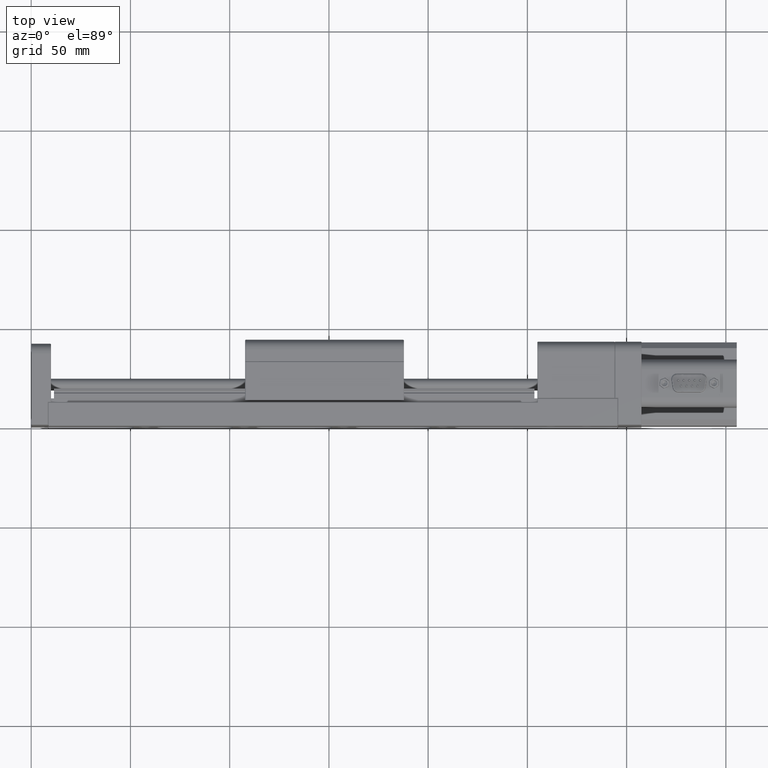
[diagram: clean part render]
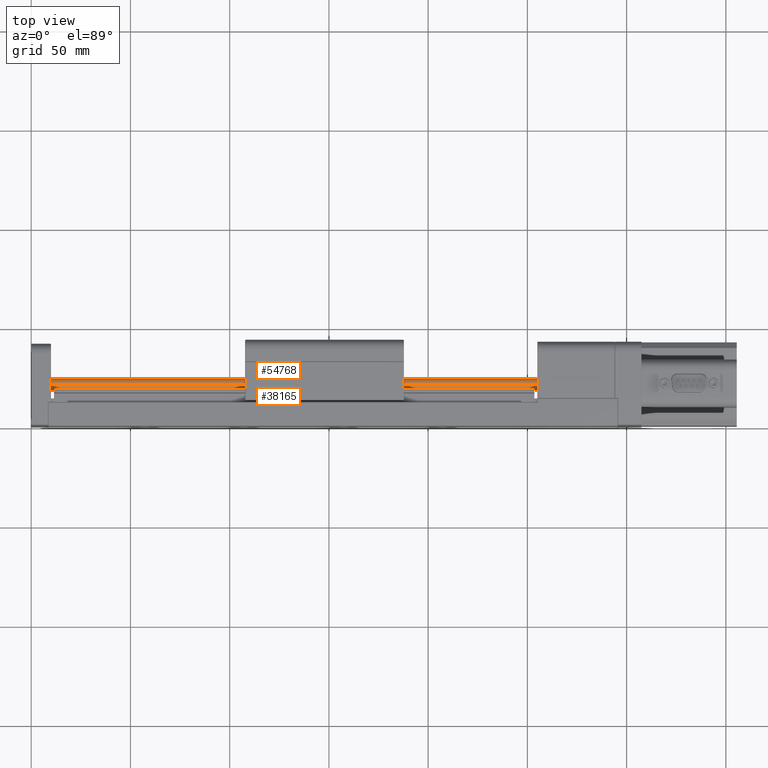
[diagram: same view with one multi-face feature highlighted, each face labeled with its STEP entity id]
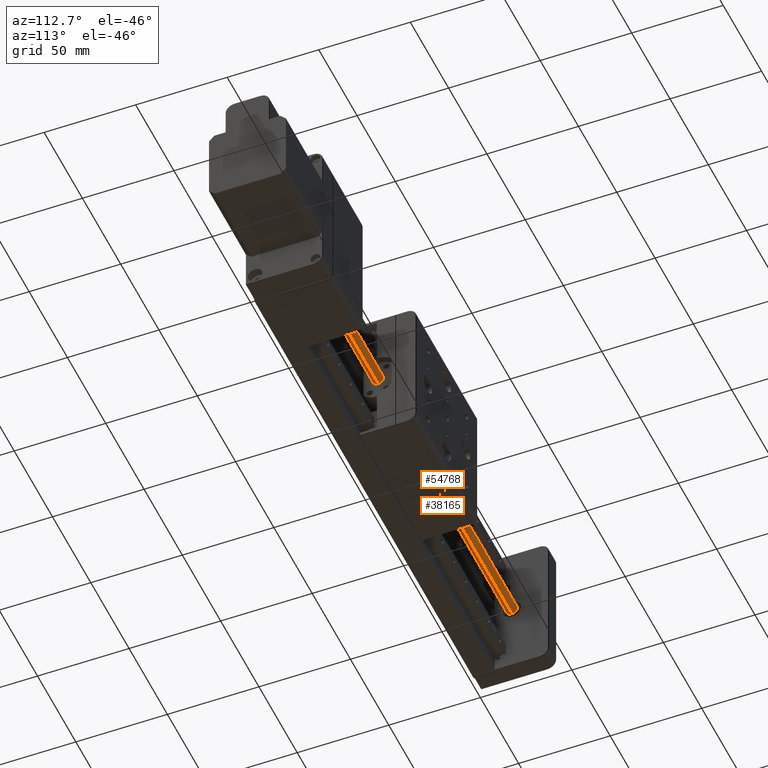
[diagram: same view with one multi-face feature highlighted, each face labeled with its STEP entity id]
A machine part, top view. The highlighted faces form ONE feature: a constant-radius fillet chain: 2 tangent blend faces with common blend radius 3 mm. The faces share edges in the B-rep.
A second angle (auxiliary view) of the same feature is appended — it is thin or edge-on in the first view.
Their STEP definitions:
[1] entity #54768 (Cylinder):
#1550 = DIRECTION ( 'NONE',  ( 1.000000000000000000, -1.223236845864777800E-017, 3.614965333616461100E-017 ) ) ;
#4746 = LINE ( 'NONE', #66017, #41784 ) ;
#8175 = CARTESIAN_POINT ( 'NONE',  ( 10.00000000000012100, 21.50000000000009200, -40.00000000000040500 ) ) ;
#8949 = CARTESIAN_POINT ( 'NONE',  ( 10.00000000000012100, 21.50000000000008900, -37.00000000000039800 ) ) ;
#9236 = AXIS2_PLACEMENT_3D ( 'NONE', #8175, #94373, #120803 ) ;
#9346 = CARTESIAN_POINT ( 'NONE',  ( 3.000000000000113700, 21.50000000000009200, -40.00000000000040500 ) ) ;
#10941 = VERTEX_POINT ( 'NONE', #39783 ) ;
#18051 = AXIS2_PLACEMENT_3D ( 'NONE', #79032, #87764, #60103 ) ;
#24421 = CARTESIAN_POINT ( 'NONE',  ( 257.0000000000001100, 21.50000000000008900, -43.00000000000039800 ) ) ;
#27014 = EDGE_CURVE ( 'NONE', #47985, #49126, #31457, .T. ) ;
#27197 = EDGE_CURVE ( 'NONE', #96451, #10941, #106427, .T. ) ;
#28381 = DIRECTION ( 'NONE',  ( 0.0000000000000000000, 0.0000000000000000000, -1.000000000000000000 ) ) ;
#28977 = EDGE_CURVE ( 'NONE', #49126, #96451, #4746, .T. ) ;
#31457 = CIRCLE ( 'NONE', #9236, 3.000000000000002700 ) ;
#37930 = DIRECTION ( 'NONE',  ( 1.000000000000000000, -1.223236845864777800E-017, 3.614965333616461100E-017 ) ) ;
#39783 = CARTESIAN_POINT ( 'NONE',  ( 257.0000000000001100, 21.50000000000008900, -37.00000000000039100 ) ) ;
#41784 = VECTOR ( 'NONE', #1550, 1000.000000000000000 ) ;
#47665 = EDGE_CURVE ( 'NONE', #47985, #10941, #118284, .T. ) ;
#47985 = VERTEX_POINT ( 'NONE', #8949 ) ;
#48417 = AXIS2_PLACEMENT_3D ( 'NONE', #9346, #37930, #28381 ) ;
#49126 = VERTEX_POINT ( 'NONE', #66444 ) ;
#54768 = ADVANCED_FACE ( 'NONE', ( #78916 ), #121815, .T. ) ;
#58996 = DIRECTION ( 'NONE',  ( 1.000000000000000000, -1.223236845864777800E-017, 3.614965333616461100E-017 ) ) ;
#60103 = DIRECTION ( 'NONE',  ( 0.0000000000000000000, 0.0000000000000000000, -1.000000000000000000 ) ) ;
#65570 = ORIENTED_EDGE ( 'NONE', *, *, #27014, .F. ) ;
#66017 = CARTESIAN_POINT ( 'NONE',  ( 3.000000000000113700, 21.50000000000009200, -43.00000000000040500 ) ) ;
#66444 = CARTESIAN_POINT ( 'NONE',  ( 10.00000000000012100, 21.50000000000008900, -43.00000000000040500 ) ) ;
#68076 = VECTOR ( 'NONE', #58996, 1000.000000000000000 ) ;
#73426 = ORIENTED_EDGE ( 'NONE', *, *, #28977, .F. ) ;
#78916 = FACE_OUTER_BOUND ( 'NONE', #100235, .T. ) ;
#79032 = CARTESIAN_POINT ( 'NONE',  ( 257.0000000000001100, 21.50000000000008900, -40.00000000000039800 ) ) ;
#87764 = DIRECTION ( 'NONE',  ( 1.000000000000000000, -1.223236845864777800E-017, 3.614965333616461100E-017 ) ) ;
#90643 = ORIENTED_EDGE ( 'NONE', *, *, #27197, .F. ) ;
#94373 = DIRECTION ( 'NONE',  ( -1.000000000000000000, 1.223236845864777800E-017, -3.614965333616461100E-017 ) ) ;
#96451 = VERTEX_POINT ( 'NONE', #24421 ) ;
#100235 = EDGE_LOOP ( 'NONE', ( #65570, #112770, #90643, #73426 ) ) ;
#106374 = CARTESIAN_POINT ( 'NONE',  ( 3.000000000000113700, 21.50000000000009200, -37.00000000000039800 ) ) ;
#106427 = CIRCLE ( 'NONE', #18051, 3.000000000000002700 ) ;
#112770 = ORIENTED_EDGE ( 'NONE', *, *, #47665, .T. ) ;
#118284 = LINE ( 'NONE', #106374, #68076 ) ;
#120803 = DIRECTION ( 'NONE',  ( 0.0000000000000000000, 0.0000000000000000000, 1.000000000000000000 ) ) ;
#121815 = CYLINDRICAL_SURFACE ( 'NONE', #48417, 3.000000000000002700 ) ;
[2] entity #38165 (Cylinder):
#1550 = DIRECTION ( 'NONE',  ( 1.000000000000000000, -1.223236845864777800E-017, 3.614965333616461100E-017 ) ) ;
#4746 = LINE ( 'NONE', #66017, #41784 ) ;
#5396 = CIRCLE ( 'NONE', #53554, 3.000000000000002700 ) ;
#6040 = ORIENTED_EDGE ( 'NONE', *, *, #47665, .F. ) ;
#7495 = DIRECTION ( 'NONE',  ( 0.0000000000000000000, 0.0000000000000000000, -1.000000000000000000 ) ) ;
#8927 = DIRECTION ( 'NONE',  ( -1.000000000000000000, 1.223236845864777800E-017, -3.614965333616461100E-017 ) ) ;
#8949 = CARTESIAN_POINT ( 'NONE',  ( 10.00000000000012100, 21.50000000000008900, -37.00000000000039800 ) ) ;
#10941 = VERTEX_POINT ( 'NONE', #39783 ) ;
#11917 = DIRECTION ( 'NONE',  ( 1.000000000000000000, -1.223236845864777800E-017, 3.614965333616461100E-017 ) ) ;
#17090 = ORIENTED_EDGE ( 'NONE', *, *, #29360, .F. ) ;
#17213 = DIRECTION ( 'NONE',  ( 0.0000000000000000000, 0.0000000000000000000, 1.000000000000000000 ) ) ;
#22643 = ORIENTED_EDGE ( 'NONE', *, *, #28977, .T. ) ;
#24421 = CARTESIAN_POINT ( 'NONE',  ( 257.0000000000001100, 21.50000000000008900, -43.00000000000039800 ) ) ;
#28977 = EDGE_CURVE ( 'NONE', #49126, #96451, #4746, .T. ) ;
#29360 = EDGE_CURVE ( 'NONE', #49126, #47985, #82813, .T. ) ;
#31407 = CARTESIAN_POINT ( 'NONE',  ( 257.0000000000001100, 21.50000000000008900, -40.00000000000039800 ) ) ;
#38165 = ADVANCED_FACE ( 'NONE', ( #44323 ), #48851, .T. ) ;
#39783 = CARTESIAN_POINT ( 'NONE',  ( 257.0000000000001100, 21.50000000000008900, -37.00000000000039100 ) ) ;
#41784 = VECTOR ( 'NONE', #1550, 1000.000000000000000 ) ;
#44323 = FACE_OUTER_BOUND ( 'NONE', #83998, .T. ) ;
#44516 = AXIS2_PLACEMENT_3D ( 'NONE', #65870, #8927, #17213 ) ;
#47393 = ORIENTED_EDGE ( 'NONE', *, *, #99477, .F. ) ;
#47665 = EDGE_CURVE ( 'NONE', #47985, #10941, #118284, .T. ) ;
#47985 = VERTEX_POINT ( 'NONE', #8949 ) ;
#48851 = CYLINDRICAL_SURFACE ( 'NONE', #64133, 3.000000000000002700 ) ;
#49126 = VERTEX_POINT ( 'NONE', #66444 ) ;
#53554 = AXIS2_PLACEMENT_3D ( 'NONE', #31407, #11917, #77956 ) ;
#58996 = DIRECTION ( 'NONE',  ( 1.000000000000000000, -1.223236845864777800E-017, 3.614965333616461100E-017 ) ) ;
#63674 = CARTESIAN_POINT ( 'NONE',  ( 3.000000000000113700, 21.50000000000009200, -40.00000000000040500 ) ) ;
#64133 = AXIS2_PLACEMENT_3D ( 'NONE', #63674, #73938, #7495 ) ;
#65870 = CARTESIAN_POINT ( 'NONE',  ( 10.00000000000012100, 21.50000000000009200, -40.00000000000040500 ) ) ;
#66017 = CARTESIAN_POINT ( 'NONE',  ( 3.000000000000113700, 21.50000000000009200, -43.00000000000040500 ) ) ;
#66444 = CARTESIAN_POINT ( 'NONE',  ( 10.00000000000012100, 21.50000000000008900, -43.00000000000040500 ) ) ;
#68076 = VECTOR ( 'NONE', #58996, 1000.000000000000000 ) ;
#73938 = DIRECTION ( 'NONE',  ( 1.000000000000000000, -1.223236845864777800E-017, 3.614965333616461100E-017 ) ) ;
#77956 = DIRECTION ( 'NONE',  ( 0.0000000000000000000, 0.0000000000000000000, -1.000000000000000000 ) ) ;
#82813 = CIRCLE ( 'NONE', #44516, 3.000000000000002700 ) ;
#83998 = EDGE_LOOP ( 'NONE', ( #6040, #17090, #22643, #47393 ) ) ;
#96451 = VERTEX_POINT ( 'NONE', #24421 ) ;
#99477 = EDGE_CURVE ( 'NONE', #10941, #96451, #5396, .T. ) ;
#106374 = CARTESIAN_POINT ( 'NONE',  ( 3.000000000000113700, 21.50000000000009200, -37.00000000000039800 ) ) ;
#118284 = LINE ( 'NONE', #106374, #68076 ) ;